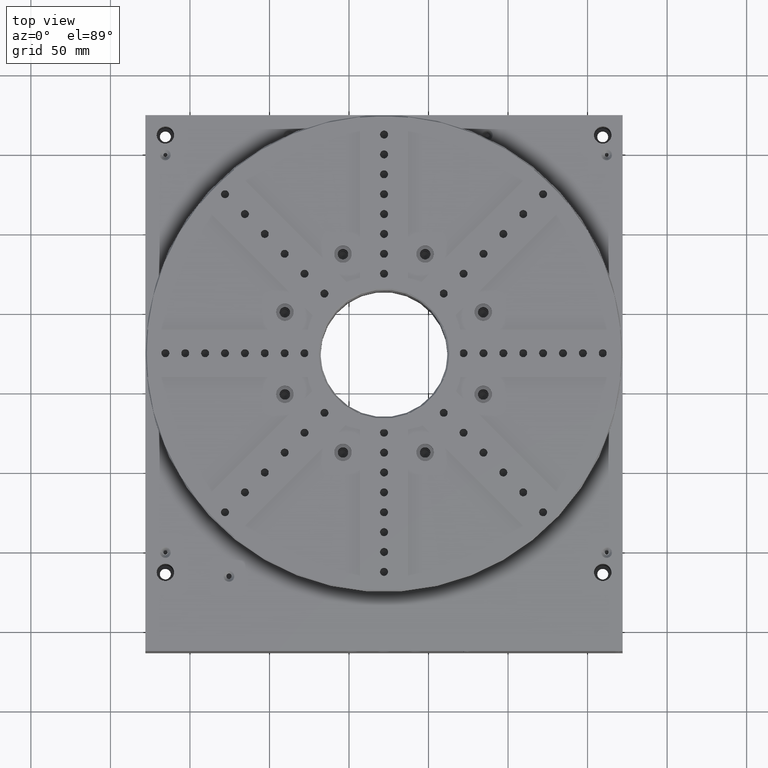
[diagram: clean part render]
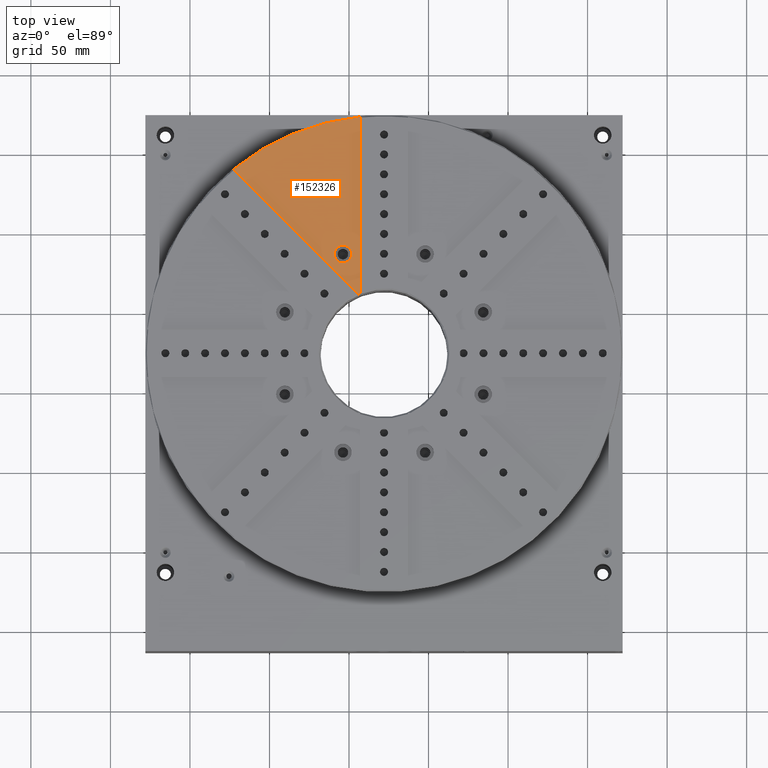
[diagram: same view with one face highlighted and labeled with its STEP entity id]
A machine part, top view. The second image highlights one B-rep face of the part: STEP entity #152326.
In plain terms, the highlighted planar face has unit normal (0, 0, 1).
Its self-contained STEP definition (entity closure, byte-faithful):
#489 = DIRECTION ( 'NONE',  ( 1.000000000000000000, 0.000000000000000000, 0.000000000000000000 ) ) ;
#2291 = ORIENTED_EDGE ( 'NONE', *, *, #127981, .F. ) ;
#6245 = VECTOR ( 'NONE', #97891, 1000.000000000000000 ) ;
#7976 = DIRECTION ( 'NONE',  ( 1.000000000000000000, 0.000000000000000000, 0.000000000000000000 ) ) ;
#13033 = LINE ( 'NONE', #69605, #6245 ) ;
#14868 = CIRCLE ( 'NONE', #144285, 40.50000000000000000 ) ;
#15945 = VERTEX_POINT ( 'NONE', #128750 ) ;
#17304 = CARTESIAN_POINT ( 'NONE',  ( -92.99816140670421305, 172.6013711266580231, 381.0000000000000000 ) ) ;
#17381 = DIRECTION ( 'NONE',  ( 0.000000000000000000, 0.000000000000000000, -1.000000000000000000 ) ) ;
#20549 = EDGE_CURVE ( 'NONE', #44705, #64335, #75114, .T. ) ;
#22061 = EDGE_LOOP ( 'NONE', ( #165710, #155383 ) ) ;
#25118 = CARTESIAN_POINT ( 'NONE',  ( -77.99816140670421305, 23.85578295678970306, 381.0000000000000000 ) ) ;
#26108 = EDGE_CURVE ( 'NONE', #15945, #103245, #71329, .T. ) ;
#27870 = CIRCLE ( 'NONE', #30853, 149.5000000000000000 ) ;
#30853 = AXIS2_PLACEMENT_3D ( 'NONE', #156160, #129754, #172171 ) ;
#31514 = DIRECTION ( 'NONE',  ( 1.000000000000000000, 0.000000000000000000, 0.000000000000000000 ) ) ;
#43380 = CIRCLE ( 'NONE', #163812, 5.500000000000005329 ) ;
#44705 = VERTEX_POINT ( 'NONE', #58917 ) ;
#44711 = CARTESIAN_POINT ( 'NONE',  ( -103.8292930913480063, 86.21765140130139571, 381.0000000000000000 ) ) ;
#45010 = VERTEX_POINT ( 'NONE', #82320 ) ;
#58917 = CARTESIAN_POINT ( 'NONE',  ( -109.3292930913479921, 86.21765140130139571, 381.0000000000000000 ) ) ;
#59876 = CARTESIAN_POINT ( 'NONE',  ( -172.5705737554000052, 139.6413987410842026, 381.0000000000000000 ) ) ;
#62338 = ORIENTED_EDGE ( 'NONE', *, *, #138125, .F. ) ;
#64335 = VERTEX_POINT ( 'NONE', #139629 ) ;
#64830 = ORIENTED_EDGE ( 'NONE', *, *, #130991, .F. ) ;
#69605 = CARTESIAN_POINT ( 'NONE',  ( -92.99816140670421305, 223.2924897085810017, 381.0000000000000000 ) ) ;
#71329 = LINE ( 'NONE', #154303, #156056 ) ;
#75114 = CIRCLE ( 'NONE', #177494, 5.500000000000005329 ) ;
#82320 = CARTESIAN_POINT ( 'NONE',  ( -92.99816140670421305, 61.47559156874310560, 381.0000000000000000 ) ) ;
#83597 = DIRECTION ( 'NONE',  ( -0.7071067811865480168, 0.7071067811865470176, 0.000000000000000000 ) ) ;
#92577 = AXIS2_PLACEMENT_3D ( 'NONE', #25118, #111851, #183493 ) ;
#97118 = ORIENTED_EDGE ( 'NONE', *, *, #26108, .F. ) ;
#97891 = DIRECTION ( 'NONE',  ( -5.313951240883329830E-16, -1.000000000000000000, 0.000000000000000000 ) ) ;
#102548 = EDGE_LOOP ( 'NONE', ( #97118, #2291, #64830, #62338 ) ) ;
#103245 = VERTEX_POINT ( 'NONE', #59876 ) ;
#106972 = DIRECTION ( 'NONE',  ( 0.000000000000000000, 0.000000000000000000, -1.000000000000000000 ) ) ;
#111851 = DIRECTION ( 'NONE',  ( 0.000000000000000000, 0.000000000000000000, 1.000000000000000000 ) ) ;
#120201 = CARTESIAN_POINT ( 'NONE',  ( -103.8292930913480063, 86.21765140130139571, 381.0000000000000000 ) ) ;
#127981 = EDGE_CURVE ( 'NONE', #45010, #15945, #14868, .T. ) ;
#128750 = CARTESIAN_POINT ( 'NONE',  ( -93.99278146535650080, 61.06360645104099660, 381.0000000000000000 ) ) ;
#129754 = DIRECTION ( 'NONE',  ( 0.000000000000000000, 0.000000000000000000, -1.000000000000000000 ) ) ;
#130991 = EDGE_CURVE ( 'NONE', #135417, #45010, #13033, .T. ) ;
#133305 = CARTESIAN_POINT ( 'NONE',  ( -77.99816140670421305, 23.85578295678970306, 381.0000000000000000 ) ) ;
#135417 = VERTEX_POINT ( 'NONE', #17304 ) ;
#138125 = EDGE_CURVE ( 'NONE', #103245, #135417, #27870, .T. ) ;
#139629 = CARTESIAN_POINT ( 'NONE',  ( -98.32929309134799212, 86.21765140130139571, 381.0000000000000000 ) ) ;
#144285 = AXIS2_PLACEMENT_3D ( 'NONE', #133305, #146532, #489 ) ;
#146532 = DIRECTION ( 'NONE',  ( 0.000000000000000000, 0.000000000000000000, 1.000000000000000000 ) ) ;
#152326 = ADVANCED_FACE ( 'NONE', ( #166523, #152410 ), #154263, .T. ) ;
#152410 = FACE_OUTER_BOUND ( 'NONE', #102548, .T. ) ;
#154263 = PLANE ( 'NONE',  #92577 ) ;
#154303 = CARTESIAN_POINT ( 'NONE',  ( -92.99816140670421305, 60.06898639238870174, 381.0000000000000000 ) ) ;
#155383 = ORIENTED_EDGE ( 'NONE', *, *, #20549, .T. ) ;
#156056 = VECTOR ( 'NONE', #83597, 1000.000000000000000 ) ;
#156160 = CARTESIAN_POINT ( 'NONE',  ( -77.99816140670421305, 23.85578295678970306, 381.0000000000000000 ) ) ;
#163812 = AXIS2_PLACEMENT_3D ( 'NONE', #44711, #17381, #31514 ) ;
#165710 = ORIENTED_EDGE ( 'NONE', *, *, #179227, .T. ) ;
#166523 = FACE_BOUND ( 'NONE', #22061, .T. ) ;
#172171 = DIRECTION ( 'NONE',  ( 1.000000000000000000, -1.786939232778784571E-15, 0.000000000000000000 ) ) ;
#177494 = AXIS2_PLACEMENT_3D ( 'NONE', #120201, #106972, #7976 ) ;
#179227 = EDGE_CURVE ( 'NONE', #64335, #44705, #43380, .T. ) ;
#183493 = DIRECTION ( 'NONE',  ( 1.000000000000000000, 0.000000000000000000, 0.000000000000000000 ) ) ;